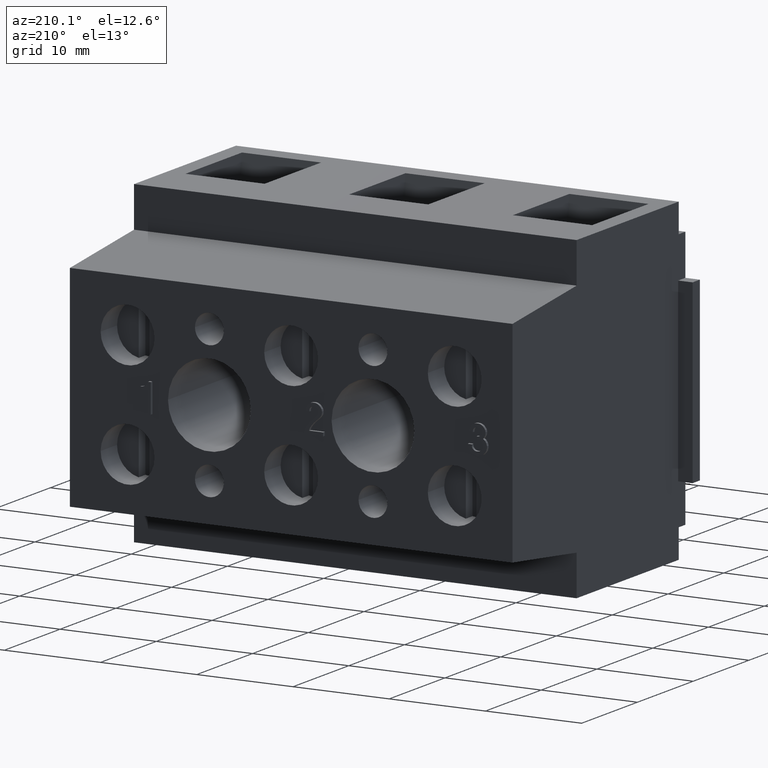
[diagram: clean part render]
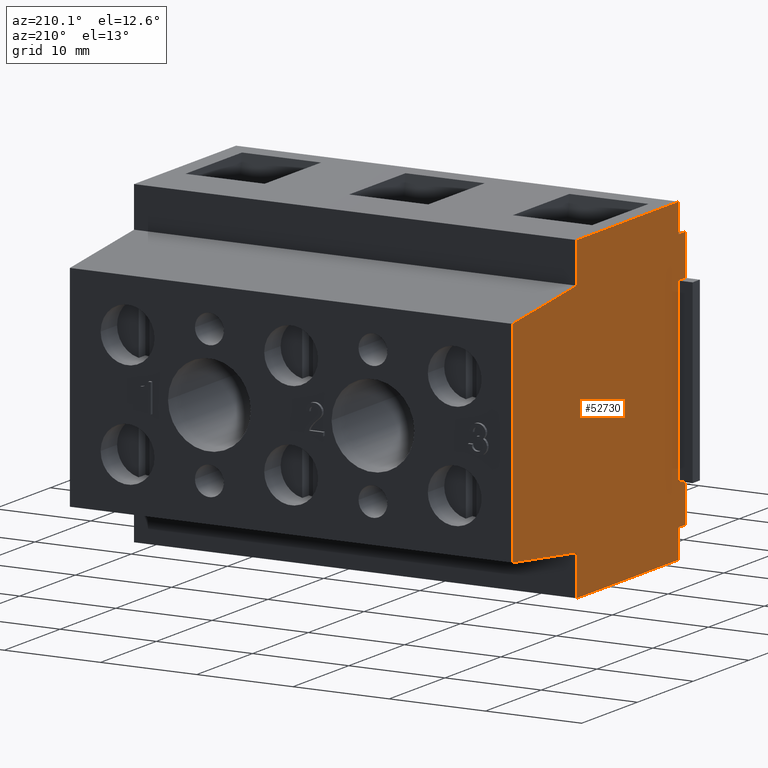
[diagram: same view with one face highlighted and labeled with its STEP entity id]
A machine part, auxiliary view. The second image highlights one B-rep face of the part: STEP entity #52730.
In plain terms, the highlighted planar face has unit normal (1, 0, 0).
Its self-contained STEP definition (entity closure, byte-faithful):
#210=CARTESIAN_POINT('',(-220.909574468087,114.925531914894,
3.5527136788005E-15));
#220=DIRECTION('',(0.,-1.,0.));
#230=VECTOR('',#220,1.);
#240=LINE('',#210,#230);
#250=CARTESIAN_POINT('',(-220.909574468087,125.925531914894,
3.5527136788005E-15));
#260=VERTEX_POINT('',#250);
#270=CARTESIAN_POINT('',(-220.909574468087,103.925531914894,
3.5527136788005E-15));
#280=VERTEX_POINT('',#270);
#290=EDGE_CURVE('',#260,#280,#240,.T.);
#12550=CARTESIAN_POINT('',(-189.909574468087,114.925531914894,
3.5527136788005E-15));
#12560=DIRECTION('',(0.,1.,0.));
#12570=VECTOR('',#12560,1.);
#12580=LINE('',#12550,#12570);
#12590=CARTESIAN_POINT('',(-189.909574468087,124.175531914894,
3.5527136788005E-15));
#12600=VERTEX_POINT('',#12590);
#12610=CARTESIAN_POINT('',(-189.909574468087,128.425531914894,
3.5527136788005E-15));
#12620=VERTEX_POINT('',#12610);
#12630=EDGE_CURVE('',#12600,#12620,#12580,.T.);
#12850=CARTESIAN_POINT('',(-189.909574468087,105.675531914894,
3.5527136788005E-15));
#12860=VERTEX_POINT('',#12850);
#12890=CARTESIAN_POINT('',(-189.909574468087,101.425531914894,
3.5527136788005E-15));
#12900=VERTEX_POINT('',#12890);
#12910=EDGE_CURVE('',#12900,#12860,#12580,.T.);
#34140=CARTESIAN_POINT('',(-208.459574468087,127.332923219242,
3.5527136788005E-15));
#34150=DIRECTION('',(-0.993671178023366,-0.112328046211337,0.));
#34160=VECTOR('',#34150,1.);
#34170=LINE('',#34140,#34160);
#34180=CARTESIAN_POINT('',(-209.409574468087,127.225531914894,
3.5527136788005E-15));
#34190=VERTEX_POINT('',#34180);
#34200=EDGE_CURVE('',#34190,#260,#34170,.T.);
#34450=CARTESIAN_POINT('',(-209.409574468087,114.925531914894,
3.5527136788005E-15));
#34460=DIRECTION('',(0.,-1.,0.));
#34470=VECTOR('',#34460,1.);
#34480=LINE('',#34450,#34470);
#34490=CARTESIAN_POINT('',(-209.409574468087,131.425531914894,
3.5527136788005E-15));
#34500=VERTEX_POINT('',#34490);
#34510=EDGE_CURVE('',#34500,#34190,#34480,.T.);
#35100=CARTESIAN_POINT('',(-208.459574468087,131.425531914894,
3.5527136788005E-15));
#35110=DIRECTION('',(-1.,0.,0.));
#35120=VECTOR('',#35110,1.);
#35130=LINE('',#35100,#35120);
#35140=CARTESIAN_POINT('',(-191.109574468087,131.425531914894,
3.5527136788005E-15));
#35150=VERTEX_POINT('',#35140);
#35160=EDGE_CURVE('',#35150,#34500,#35130,.T.);
#40350=CARTESIAN_POINT('',(-191.109574468087,114.925531914894,
3.5527136788005E-15));
#40360=DIRECTION('',(0.,1.,0.));
#40370=VECTOR('',#40360,1.);
#40380=LINE('',#40350,#40370);
#40390=CARTESIAN_POINT('',(-191.109574468087,128.425531914894,
3.5527136788005E-15));
#40400=VERTEX_POINT('',#40390);
#40410=EDGE_CURVE('',#40400,#35150,#40380,.T.);
#40660=CARTESIAN_POINT('',(-208.459574468087,128.425531914894,
3.5527136788005E-15));
#40670=DIRECTION('',(-1.,0.,0.));
#40680=VECTOR('',#40670,1.);
#40690=LINE('',#40660,#40680);
#40700=EDGE_CURVE('',#12620,#40400,#40690,.T.);
#41230=CARTESIAN_POINT('',(-208.459574468087,101.425531914894,
3.5527136788005E-15));
#41240=DIRECTION('',(1.,0.,0.));
#41250=VECTOR('',#41240,1.);
#41260=LINE('',#41230,#41250);
#41270=CARTESIAN_POINT('',(-191.109574468087,101.425531914894,
3.5527136788005E-15));
#41280=VERTEX_POINT('',#41270);
#41290=EDGE_CURVE('',#41280,#12900,#41260,.T.);
#41540=CARTESIAN_POINT('',(-191.109574468087,114.925531914894,
3.5527136788005E-15));
#41550=DIRECTION('',(0.,1.,0.));
#41560=VECTOR('',#41550,1.);
#41570=LINE('',#41540,#41560);
#41580=CARTESIAN_POINT('',(-191.109574468087,98.4255319148938,
3.5527136788005E-15));
#41590=VERTEX_POINT('',#41580);
#41600=EDGE_CURVE('',#41590,#41280,#41570,.T.);
#42190=CARTESIAN_POINT('',(-208.459574468087,98.4255319148938,
3.5527136788005E-15));
#42200=DIRECTION('',(1.,0.,0.));
#42210=VECTOR('',#42200,1.);
#42220=LINE('',#42190,#42210);
#42230=CARTESIAN_POINT('',(-209.409574468087,98.4255319148938,
3.5527136788005E-15));
#42240=VERTEX_POINT('',#42230);
#42250=EDGE_CURVE('',#42240,#41590,#42220,.T.);
#47440=CARTESIAN_POINT('',(-209.409574468087,114.925531914894,
3.5527136788005E-15));
#47450=DIRECTION('',(0.,-1.,0.));
#47460=VECTOR('',#47450,1.);
#47470=LINE('',#47440,#47460);
#47480=CARTESIAN_POINT('',(-209.409574468087,102.625531914894,
3.5527136788005E-15));
#47490=VERTEX_POINT('',#47480);
#47500=EDGE_CURVE('',#47490,#42240,#47470,.T.);
#47750=CARTESIAN_POINT('',(-208.459574468087,102.518140610546,
3.5527136788005E-15));
#47760=DIRECTION('',(0.993671178023366,-0.112328046211337,0.));
#47770=VECTOR('',#47760,1.);
#47780=LINE('',#47750,#47770);
#47790=EDGE_CURVE('',#280,#47490,#47780,.T.);
#52310=CARTESIAN_POINT('',(-203.409574468087,98.4255319148938,
3.5527136788005E-15));
#52320=DIRECTION('',(0.,-0.,1.));
#52330=DIRECTION('',(0.,1.,0.));
#52340=AXIS2_PLACEMENT_3D('',#52310,#52320,#52330);
#52350=PLANE('',#52340);
#52360=ORIENTED_EDGE('',*,*,#41600,.F.);
#52370=ORIENTED_EDGE('',*,*,#41290,.F.);
#52380=ORIENTED_EDGE('',*,*,#12910,.F.);
#52390=CARTESIAN_POINT('',(-208.459574468087,105.675531914894,
3.5527136788005E-15));
#52400=DIRECTION('',(-1.,0.,0.));
#52410=VECTOR('',#52400,1.);
#52420=LINE('',#52390,#52410);
#52430=CARTESIAN_POINT('',(-191.209574468087,105.675531914894,
3.5527136788005E-15));
#52440=VERTEX_POINT('',#52430);
#52450=EDGE_CURVE('',#12860,#52440,#52420,.T.);
#52460=ORIENTED_EDGE('',*,*,#52450,.F.);
#52470=CARTESIAN_POINT('',(-191.209574468087,114.925531914894,
3.5527136788005E-15));
#52480=DIRECTION('',(0.,1.,0.));
#52490=VECTOR('',#52480,1.);
#52500=LINE('',#52470,#52490);
#52510=CARTESIAN_POINT('',(-191.209574468087,124.175531914894,
3.5527136788005E-15));
#52520=VERTEX_POINT('',#52510);
#52530=EDGE_CURVE('',#52440,#52520,#52500,.T.);
#52540=ORIENTED_EDGE('',*,*,#52530,.F.);
#52550=CARTESIAN_POINT('',(-208.459574468087,124.175531914894,
3.5527136788005E-15));
#52560=DIRECTION('',(1.,0.,0.));
#52570=VECTOR('',#52560,1.);
#52580=LINE('',#52550,#52570);
#52590=EDGE_CURVE('',#52520,#12600,#52580,.T.);
#52600=ORIENTED_EDGE('',*,*,#52590,.F.);
#52610=ORIENTED_EDGE('',*,*,#12630,.F.);
#52620=ORIENTED_EDGE('',*,*,#40700,.F.);
#52630=ORIENTED_EDGE('',*,*,#40410,.F.);
#52640=ORIENTED_EDGE('',*,*,#35160,.F.);
#52650=ORIENTED_EDGE('',*,*,#34510,.F.);
#52660=ORIENTED_EDGE('',*,*,#34200,.F.);
#52670=ORIENTED_EDGE('',*,*,#290,.F.);
#52680=ORIENTED_EDGE('',*,*,#47790,.F.);
#52690=ORIENTED_EDGE('',*,*,#47500,.F.);
#52700=ORIENTED_EDGE('',*,*,#42250,.F.);
#52710=EDGE_LOOP('',(#52700,#52690,#52680,#52670,#52660,#52650,#52640,
#52630,#52620,#52610,#52600,#52540,#52460,#52380,#52370,#52360));
#52720=FACE_OUTER_BOUND('',#52710,.T.);
#52730=ADVANCED_FACE('',(#52720),#52350,.F.);